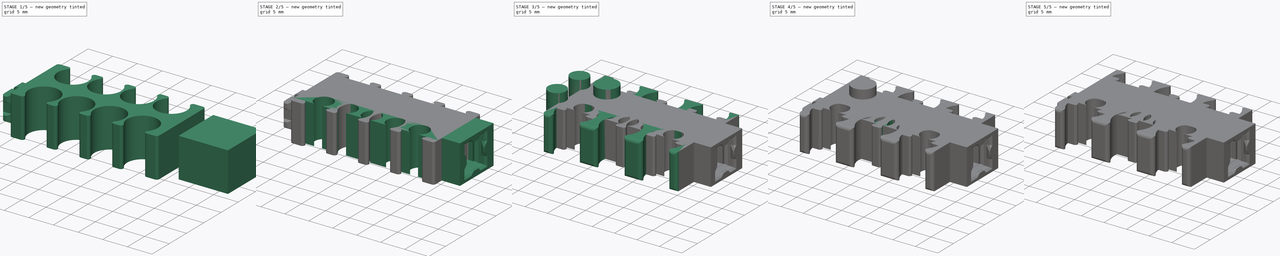
[diagram: build sequence overview — one tinted view per stage of 5, left to right]
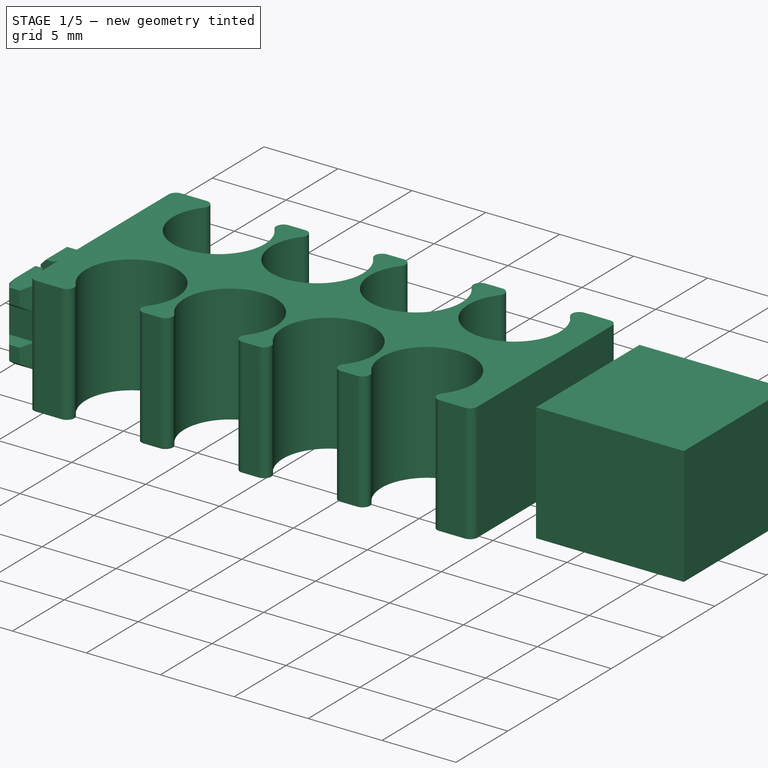
[diagram: stage 1 of 5 — iso view after this stage's code; geometry added in this stage tinted green]
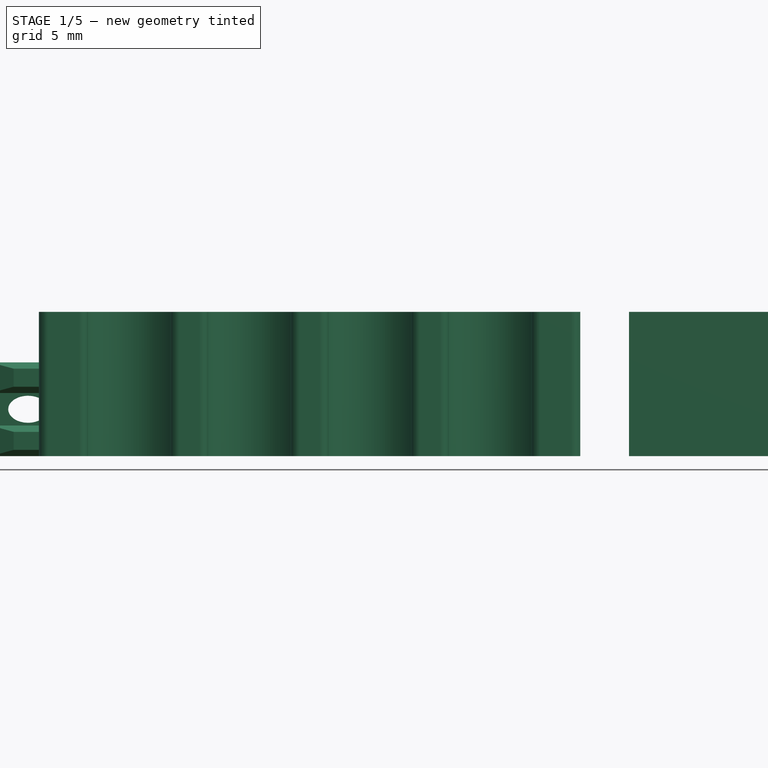
[diagram: stage 1 of 5 — front view after this stage's code; geometry added in this stage tinted green]
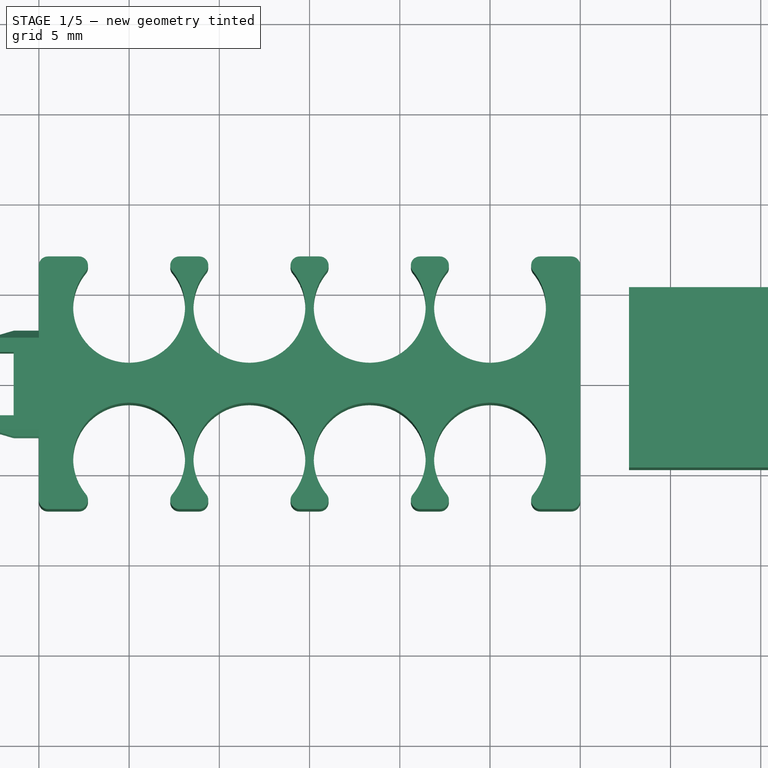
[diagram: stage 1 of 5 — top view after this stage's code; geometry added in this stage tinted green]
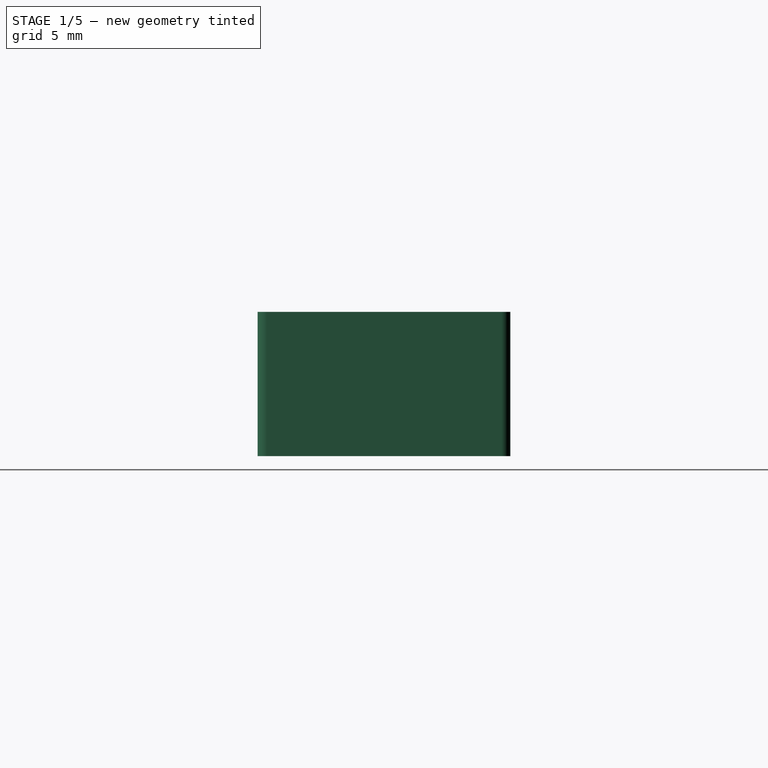
[diagram: stage 1 of 5 — right view after this stage's code; geometry added in this stage tinted green]
FCSTD DOCUMENT  (FreeCAD 0.20R29177 (Git))
Label: ring-clip-cable-organizer-wire-organizer-connectable
License: All rights reserved
LicenseURL: http://en.wikipedia.org/wiki/All_rights_reserved
objects: Part::Cut×17, Part::Cylinder×13, Sketcher::SketchObject×8, Part::Feature×8, Part::Refine×8, Part::Box×8, PartDesign::Pad×4, PartDesign::Pocket×4, PartDesign::LinearPattern×4, Part::MultiCommon×4, PartDesign::Body×4, App::Part×4, PartDesign::Fillet×3, Spreadsheet::Sheet×1
note: 96 computed .brp shape members not serialized (recipe doc carries the construction recipe); baked Part::Feature solids carry a one-line shape summary decoded from their .brp

FEATURE [App::Part] Part002  label="Part-S"
  Group = -> [Body002,_08_ShortBlok001_solid004,_08_ShortBlok001_solid005,Box004,Common002,Cylinder008,Cylinder009,_02h_Connector001001_solid004,_02h_Connector001001_solid005,Box005,Cylinder010,Cut011,Cut009,Cut010,Cut012]
  Origin = -> Origin005
FEATURE [Part::Box] Box006  label="Cube006"
  AttacherType = Attacher::AttachEngine3D
  Height = 8
  Length = 10
  Placement = pos=(17.7,-4.7,0) rot=(0,0,1;0rad)
  Width = 10
FEATURE [Part::Cylinder] Cylinder011
  Angle = 360
  AttacherType = Attacher::AttachEngine3D
  FirstAngle = 0
  Height = 10
  Placement = pos=(-16.4,-3.5,0) rot=(0,0,1;0rad)
  Radius = 2
  SecondAngle = 0
FEATURE [Part::Cylinder] Cylinder012
  Angle = 360
  AttacherType = Attacher::AttachEngine3D
  FirstAngle = 0
  Height = 10
  Placement = pos=(-16.3,3.5,0) rot=(0,0,1;0rad)
  Radius = 2
  SecondAngle = 0
FEATURE [Part::Cylinder] Cylinder013
  Angle = 360
  AttacherType = Attacher::AttachEngine3D
  FirstAngle = 0
  Height = 10
  Placement = pos=(-10.1,3.4,0) rot=(0,0,1;0rad)
  Radius = 2.5
  SecondAngle = 0
FEATURE [Sketcher::SketchObject] Sketch006
  FullyConstrained = true
  MapMode = 5
  Support = -> [XY_Plane006]
  expr: Constraints[10] = <<Spreadsheet_connectors>>.connector_length_S
  expr: Constraints[11] = <<Spreadsheet_connectors>>.connector_width_L
  sketch-geometry (5):
    g0: LineSegment StartX=-15 StartY=-7 StartZ=0 EndX=-15 EndY=7 EndZ=0
    g1: LineSegment StartX=-15 StartY=7 StartZ=0 EndX=15 EndY=7 EndZ=0
    g2: LineSegment StartX=15 StartY=7 StartZ=0 EndX=15 EndY=-7 EndZ=0
    g3: LineSegment StartX=15 StartY=-7 StartZ=0 EndX=-15 EndY=-7 EndZ=0
    g4: GeomPoint X=0 Y=0 Z=0
  constraints (12):
    c: Coincident(g0,g1)
    c: Coincident(g1,g2)
    c: Coincident(g2,g3)
    c: Coincident(g3,g0)
    c: Horizontal(g1)
    c: Horizontal(g3)
    c: Vertical(g0)
    c: Vertical(g2)
    c: Symmetric(g1,g0,g4)
    c: Coincident(g4,g-1)
    c: DistanceX(g1,g1) = 30
    c: DistanceY(g2,g2) = 14
FEATURE [PartDesign::Pad] Pad003
  Direction = (0,0,1)
  Length = 8
  Length2 = 10
  Profile = -> Sketch006
  ReferenceAxis = -> Sketch006 [N_Axis]
  Type = 0
  expr: Length = <<Spreadsheet_connectors>>.connector_height
FEATURE [Sketcher::SketchObject] Sketch007
  FullyConstrained = true
  MapMode = 5
  Support = -> [XY_Plane006]
  expr: Constraints[0] = <<Spreadsheet_connectors>>.wire_hole_L
  expr: Constraints[1] = 10mm
  expr: Constraints[2] = <<Spreadsheet_connectors>>.connector_width_L / 2 - <<Spreadsheet_connectors>>.wire_hole_L * 0.45
  expr: Constraints[4] = 10mm
  expr: Constraints[5] = <<Spreadsheet_connectors>>.connector_width_L / 2 - <<Spreadsheet_connectors>>.wire_hole_L * 0.45
  sketch-geometry (2):
    g0: Circle CenterX=-10 CenterY=4.21 CenterZ=0 NormalX=0 NormalY=0 NormalZ=1 AngleXU=0 Radius=3.1
    g1: Circle CenterX=-10 CenterY=-4.21 CenterZ=0 NormalX=0 NormalY=0 NormalZ=1 AngleXU=0 Radius=3.1
  constraints (6):
    c: Diameter(g0) = 6.2
    c: Distance(g0,g-2) = 10
    c: Distance(g0,g-1) = 4.21
    c: Equal(g0,g1) = 3.8
    c: Distance(g1,g-2) = 10
    c: Distance(g1,g-1) = 4.21
FEATURE [PartDesign::Pocket] Pocket003
  BaseFeature = -> Pad003
  Direction = (0,0,-1)
  Length = 5
  Length2 = 5
  Midplane = true
  Profile = -> Sketch007
  ReferenceAxis = -> Sketch007 [N_Axis]
  Type = 1
FEATURE [PartDesign::LinearPattern] LinearPattern003
  BaseFeature = -> Pocket003
  Direction = -> Sketch007 [H_Axis]
  Length = 20
  Occurrences = 4
  Originals = -> [Pocket003]
  expr: Length = 20mm
  expr: Occurrences = 4
FEATURE [Part::Feature] _02h_Connector001001_solid006  label="_02h_Connector001001 (Solid)006"
  shape: bbox 7.7 x 6.08 x 5.2 mm, 692 faces (baked)
FEATURE [Part::Refine] _02h_Connector001001_solid007  label="_02h_Connector001001 (Solid)007"
  Placement = pos=(1,0,0) rot=(0,0,1;0rad)
  Source = -> _02h_Connector001001_solid006
FEATURE [Part::Cut] Cut013
  Base = -> _02h_Connector001001_solid007
  Tool = -> Cylinder012
FEATURE [Part::Cut] Cut014
  Base = -> Cut013
  Placement = pos=(5.8,0,0) rot=(0,0,1;0rad)
  Tool = -> Cylinder011
FEATURE [Part::Cut] Cut016
  Base = -> Cut014
  Placement = pos=(-1.4,0,0) rot=(0,0,1;0rad)
  Tool = -> Cylinder013
FEATURE [PartDesign::Fillet] PartDesign__Fillet003
  Base = -> LinearPattern003 [Edge1,Edge2,Edge7,Edge9,Edge61,Edge62,Edge63,Edge64,Edge65,Edge66,Edge67,Edge68,Edge69,Edge70,Edge71,Edge72,Edge73,Edge74,Edge75,Edge76,Edge77,Edge78,Edge79,Edge80,Edge81,Edge82,Edge83,Edge84]
  BaseFeature = -> LinearPattern003
  Radius = 0.5
  SupportTransform = false
  UseAllEdges = false
FEATURE [PartDesign::Body] Body003
  Group = -> [Sketch006,Pad003,Sketch007,Pocket003,LinearPattern003,PartDesign__Fillet003]
  Origin = -> Origin006
  Tip = -> PartDesign__Fillet003
FEATURE [App::Part] Part003  label="Part-L"
  Group = -> [Body003,_08_ShortBlok001_solid006,_08_ShortBlok001_solid007,Box006,Common003,Cylinder011,Cylinder012,_02h_Connector001001_solid006,_02h_Connector001001_solid007,Box007,Cylinder013,Cut015,Cut013,Cut014,Cut016]
  Origin = -> Origin007
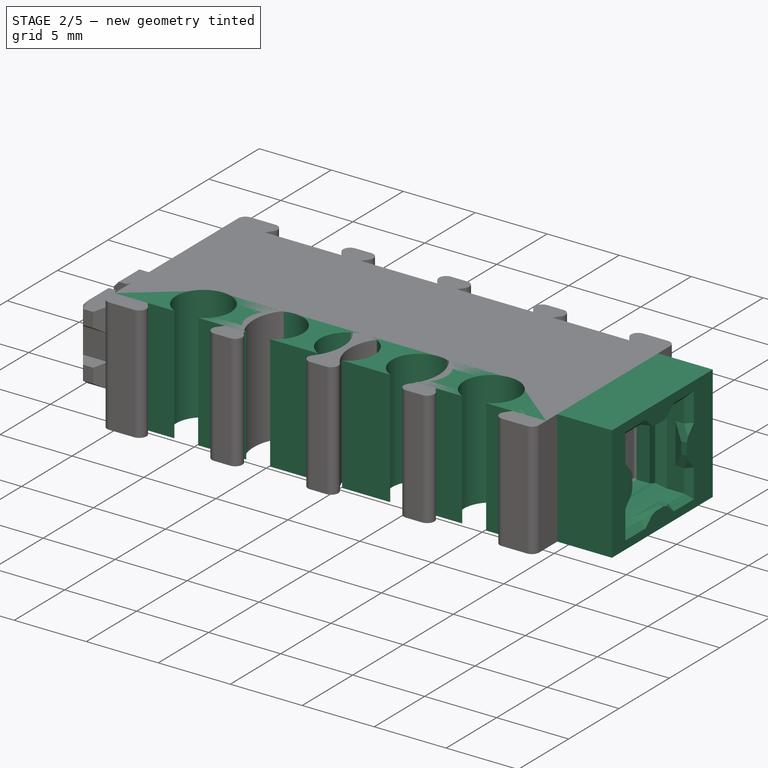
[diagram: stage 2 of 5 — iso view after this stage's code; geometry added in this stage tinted green]
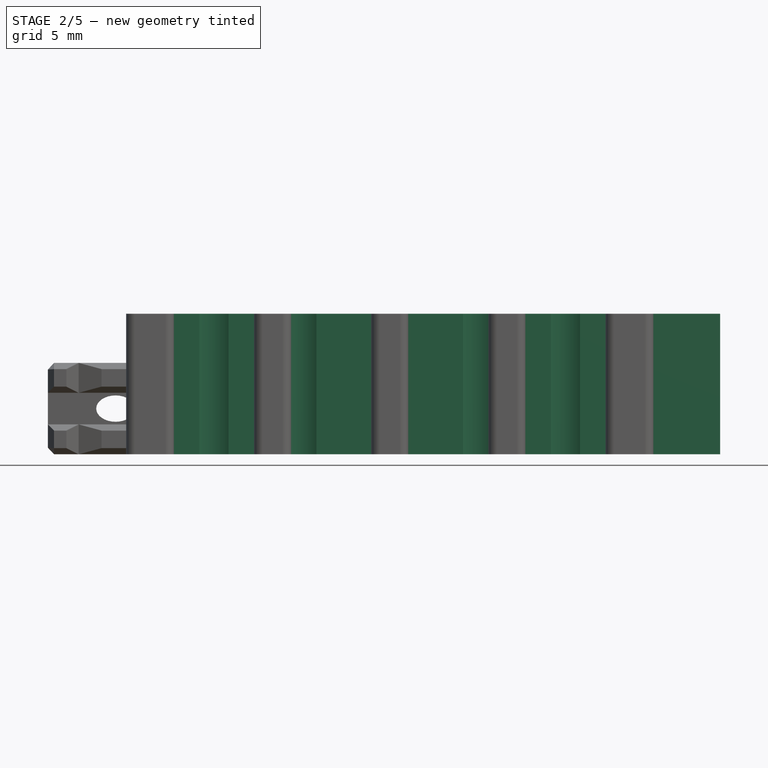
[diagram: stage 2 of 5 — front view after this stage's code; geometry added in this stage tinted green]
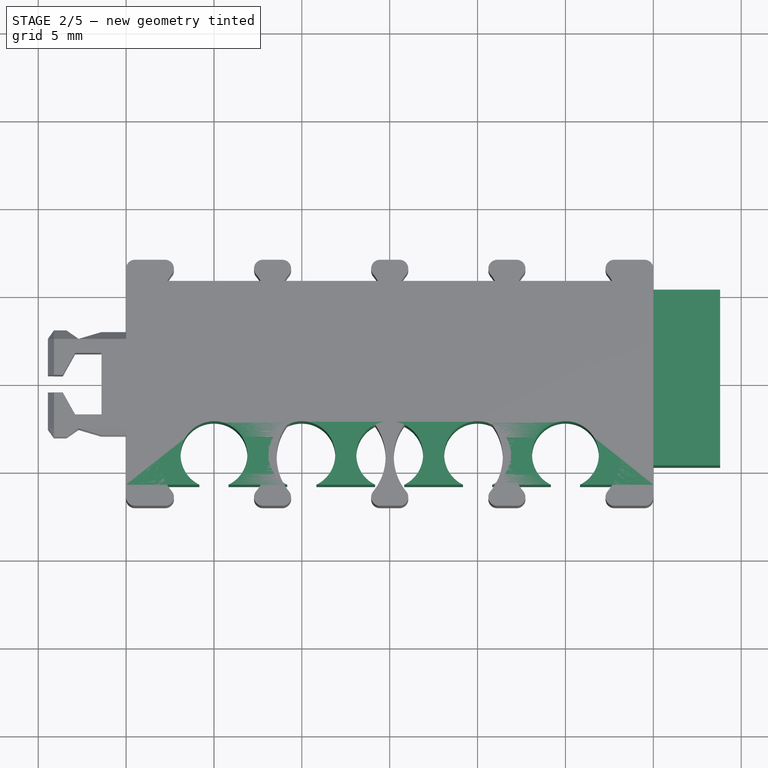
[diagram: stage 2 of 5 — top view after this stage's code; geometry added in this stage tinted green]
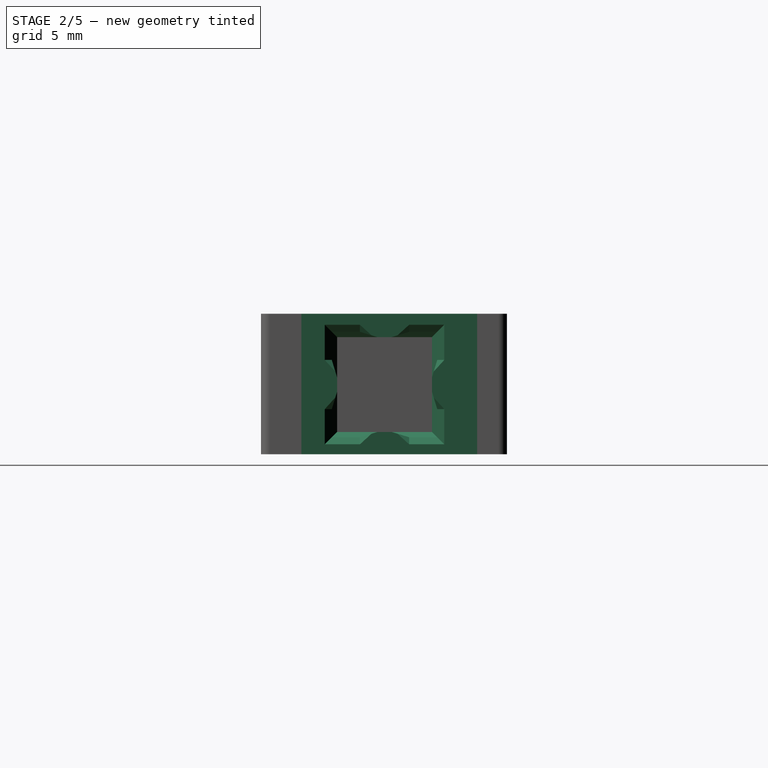
[diagram: stage 2 of 5 — right view after this stage's code; geometry added in this stage tinted green]
FEATURE [Part::Cylinder] Cylinder008
  Angle = 360
  AttacherType = Attacher::AttachEngine3D
  FirstAngle = 0
  Height = 10
  Placement = pos=(-16.4,-3.5,0) rot=(0,0,1;0rad)
  Radius = 2
  SecondAngle = 0
FEATURE [Part::Cylinder] Cylinder009
  Angle = 360
  AttacherType = Attacher::AttachEngine3D
  FirstAngle = 0
  Height = 10
  Placement = pos=(-16.3,3.5,0) rot=(0,0,1;0rad)
  Radius = 2
  SecondAngle = 0
FEATURE [Part::Cylinder] Cylinder010
  Angle = 360
  AttacherType = Attacher::AttachEngine3D
  FirstAngle = 0
  Height = 10
  Placement = pos=(-10.1,3.4,0) rot=(0,0,1;0rad)
  Radius = 2.5
  SecondAngle = 0
FEATURE [Sketcher::SketchObject] Sketch004
  FullyConstrained = true
  MapMode = 5
  Support = -> [XY_Plane004]
  expr: Constraints[10] = <<Spreadsheet_connectors>>.connector_length_S
  expr: Constraints[11] = <<Spreadsheet_connectors>>.connector_width_S
  sketch-geometry (5):
    g0: LineSegment StartX=-15 StartY=-5.8 StartZ=0 EndX=-15 EndY=5.8 EndZ=0
    g1: LineSegment StartX=-15 StartY=5.8 StartZ=0 EndX=15 EndY=5.8 EndZ=0
    g2: LineSegment StartX=15 StartY=5.8 StartZ=0 EndX=15 EndY=-5.8 EndZ=0
    g3: LineSegment StartX=15 StartY=-5.8 StartZ=0 EndX=-15 EndY=-5.8 EndZ=0
    g4: GeomPoint X=0 Y=0 Z=0
  constraints (12):
    c: Coincident(g0,g1)
    c: Coincident(g1,g2)
    c: Coincident(g2,g3)
    c: Coincident(g3,g0)
    c: Horizontal(g1)
    c: Horizontal(g3)
    c: Vertical(g0)
    c: Vertical(g2)
    c: Symmetric(g1,g0,g4)
    c: Coincident(g4,g-1)
    c: DistanceX(g1,g1) = 30
    c: DistanceY(g2,g2) = 11.6
FEATURE [PartDesign::Pad] Pad002
  Direction = (0,0,1)
  Length = 8
  Length2 = 10
  Profile = -> Sketch004
  ReferenceAxis = -> Sketch004 [N_Axis]
  Type = 0
  expr: Length = <<Spreadsheet_connectors>>.connector_height
FEATURE [Sketcher::SketchObject] Sketch005
  FullyConstrained = false
  MapMode = 5
  Support = -> [XY_Plane004]
  expr: Constraints[0] = 10mm
  expr: Constraints[1] = <<Spreadsheet_connectors>>.connector_width_S / 2 - <<Spreadsheet_connectors>>.wire_hole_S * 0.45
  sketch-geometry (1):
    g0: Circle CenterX=-10 CenterY=-4.09 CenterZ=0 NormalX=0 NormalY=0 NormalZ=1 AngleXU=0 Radius=1.9
  constraints (2):
    c: Distance(g0,g-2) = 10
    c: Distance(g0,g-1) = 4.09
FEATURE [PartDesign::Pocket] Pocket002
  BaseFeature = -> Pad002
  Direction = (0,0,-1)
  Length = 5
  Length2 = 5
  Midplane = true
  Profile = -> Sketch005
  ReferenceAxis = -> Sketch005 [N_Axis]
  Type = 1
FEATURE [PartDesign::LinearPattern] LinearPattern002
  BaseFeature = -> Pocket002
  Direction = -> Sketch005 [H_Axis]
  Length = 20
  Occurrences = 5
  Originals = -> [Pocket002]
  expr: Length = 20mm
  expr: Occurrences = 5
FEATURE [PartDesign::Body] Body002
  Group = -> [Sketch004,Pad002,Sketch005,Pocket002,LinearPattern002]
  Origin = -> Origin004
  Tip = -> LinearPattern002
FEATURE [Part::Feature] _02h_Connector001001_solid004  label="_02h_Connector001001 (Solid)004"
  shape: bbox 7.7 x 6.08 x 5.2 mm, 692 faces (baked)
FEATURE [Part::Refine] _02h_Connector001001_solid005  label="_02h_Connector001001 (Solid)005"
  Placement = pos=(1,0,0) rot=(0,0,1;0rad)
  Source = -> _02h_Connector001001_solid004
FEATURE [Part::Cut] Cut009
  Base = -> _02h_Connector001001_solid005
  Tool = -> Cylinder009
FEATURE [Part::Cut] Cut010
  Base = -> Cut009
  Placement = pos=(5.8,0,0) rot=(0,0,1;0rad)
  Tool = -> Cylinder008
FEATURE [Part::Cut] Cut012
  Base = -> Cut010
  Placement = pos=(-1.4,0,0) rot=(0,0,1;0rad)
  Tool = -> Cylinder010
FEATURE [Part::Box] Box007  label="Cube007"
  AttacherType = Attacher::AttachEngine3D
  Height = 10
  Length = 4
  Placement = pos=(18,-4.7,0) rot=(0,0,1;0rad)
  Width = 10
FEATURE [Part::Feature] _08_ShortBlok001_solid006  label="_08_ShortBlok001 (Solid)006"
  shape: bbox 8 x 16 x 16 mm, 464 faces (baked)
FEATURE [Part::Refine] _08_ShortBlok001_solid007  label="_08_ShortBlok001 (Solid)007"
  Placement = pos=(0,3,1) rot=(1,0,0;0.785398rad)
  Source = -> _08_ShortBlok001_solid006
FEATURE [Part::MultiCommon] Common003
  Placement = pos=(0.3,0,0) rot=(0,0,1;0rad)
  Shapes = -> [_08_ShortBlok001_solid007,Box006]
FEATURE [Part::Cut] Cut015
  Base = -> Common003
  Placement = pos=(-7,0,0) rot=(0,0,1;0rad)
  Tool = -> Box007
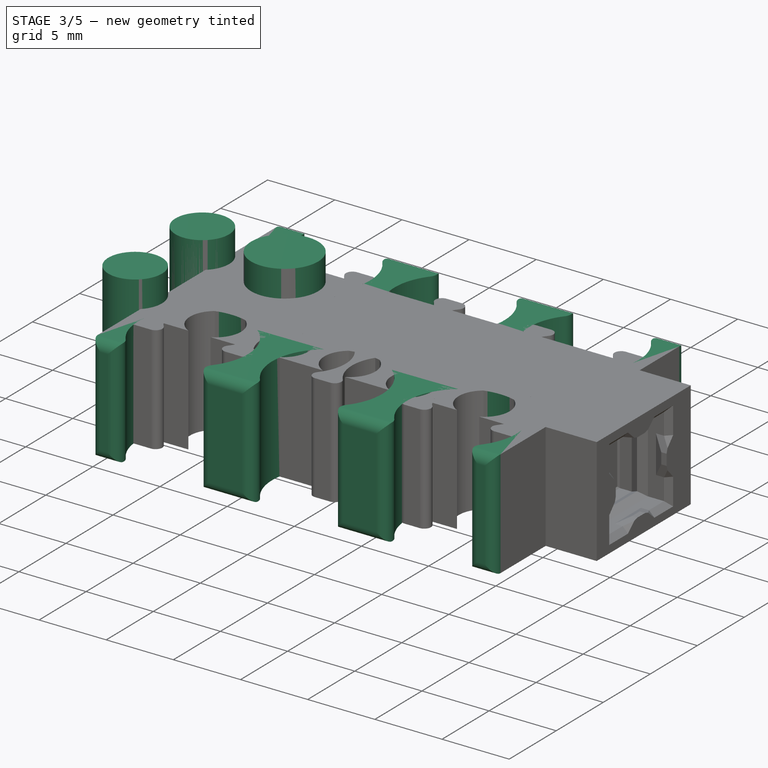
[diagram: stage 3 of 5 — iso view after this stage's code; geometry added in this stage tinted green]
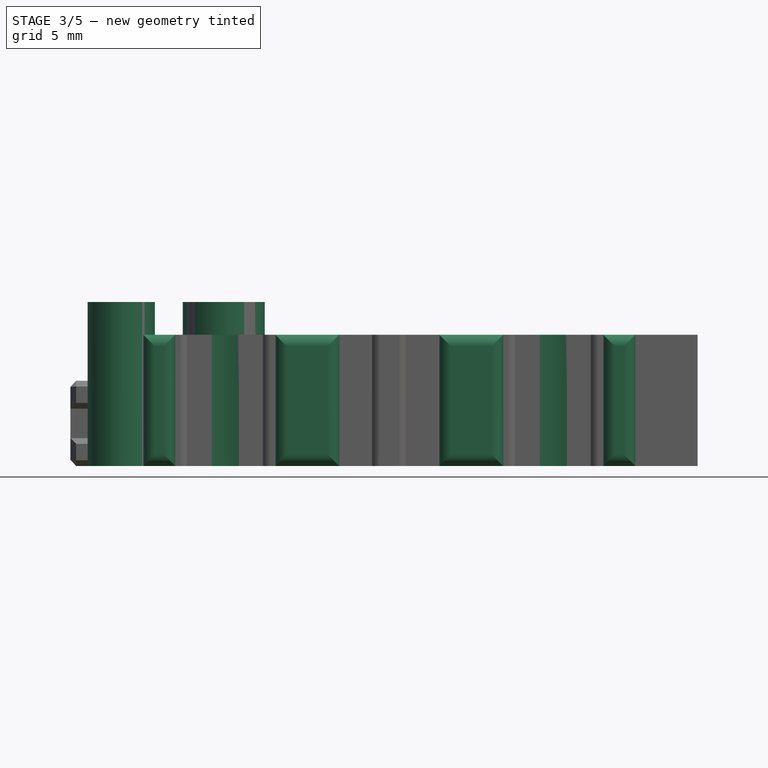
[diagram: stage 3 of 5 — front view after this stage's code; geometry added in this stage tinted green]
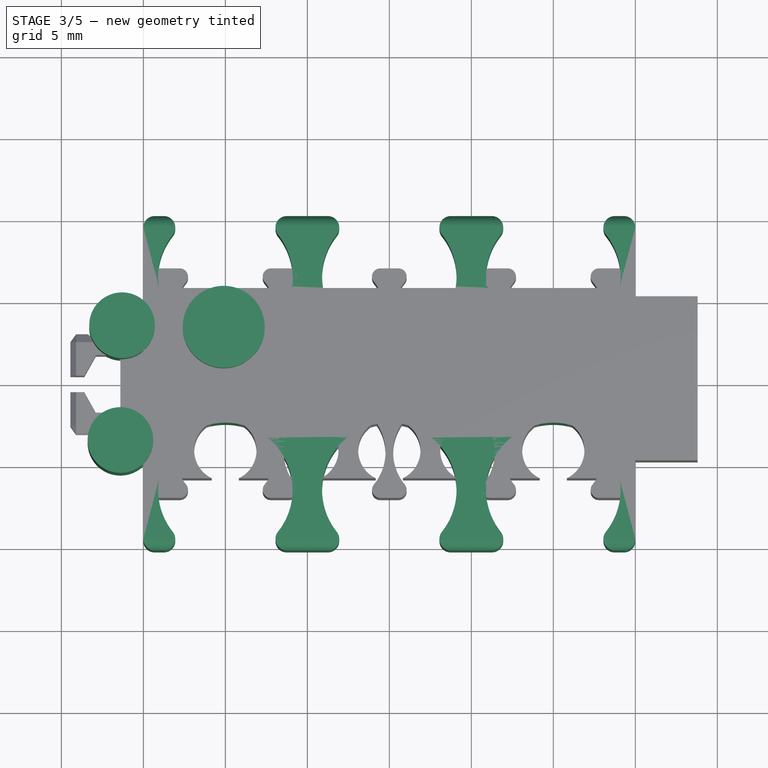
[diagram: stage 3 of 5 — top view after this stage's code; geometry added in this stage tinted green]
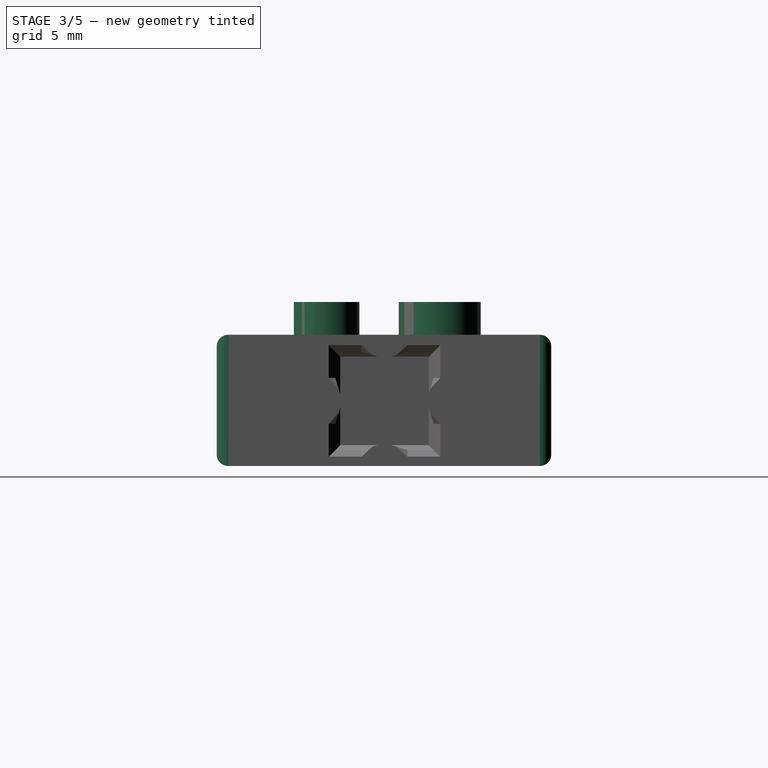
[diagram: stage 3 of 5 — right view after this stage's code; geometry added in this stage tinted green]
FEATURE [Part::Cylinder] Cylinder004
  Angle = 360
  AttacherType = Attacher::AttachEngine3D
  FirstAngle = 0
  Height = 10
  Placement = pos=(-16.4,-3.5,0) rot=(0,0,1;0rad)
  Radius = 2
  SecondAngle = 0
FEATURE [Part::Cylinder] Cylinder005
  Angle = 360
  AttacherType = Attacher::AttachEngine3D
  FirstAngle = 0
  Height = 10
  Placement = pos=(-16.3,3.5,0) rot=(0,0,1;0rad)
  Radius = 2
  SecondAngle = 0
FEATURE [Part::Cylinder] Cylinder007
  Angle = 360
  AttacherType = Attacher::AttachEngine3D
  FirstAngle = 0
  Height = 10
  Placement = pos=(-10.1,3.4,0) rot=(0,0,1;0rad)
  Radius = 2.5
  SecondAngle = 0
FEATURE [Sketcher::SketchObject] Sketch002
  FullyConstrained = true
  MapMode = 5
  Support = -> [XY_Plane002]
  expr: Constraints[10] = <<Spreadsheet_connectors>>.connector_length_S
  expr: Constraints[11] = <<Spreadsheet_connectors>>.connector_width_XL
  sketch-geometry (5):
    g0: LineSegment StartX=-15 StartY=-10.2 StartZ=0 EndX=-15 EndY=10.2 EndZ=0
    g1: LineSegment StartX=-15 StartY=10.2 StartZ=0 EndX=15 EndY=10.2 EndZ=0
    g2: LineSegment StartX=15 StartY=10.2 StartZ=0 EndX=15 EndY=-10.2 EndZ=0
    g3: LineSegment StartX=15 StartY=-10.2 StartZ=0 EndX=-15 EndY=-10.2 EndZ=0
    g4: GeomPoint X=0 Y=0 Z=0
  constraints (12):
    c: Coincident(g0,g1)
    c: Coincident(g1,g2)
    c: Coincident(g2,g3)
    c: Coincident(g3,g0)
    c: Horizontal(g1)
    c: Horizontal(g3)
    c: Vertical(g0)
    c: Vertical(g2)
    c: Symmetric(g1,g0,g4)
    c: Coincident(g4,g-1)
    c: DistanceX(g1,g1) = 30
    c: DistanceY(g2,g2) = 20.4
FEATURE [PartDesign::Pad] Pad001
  Direction = (0,0,1)
  Length = 8
  Length2 = 10
  Profile = -> Sketch002
  ReferenceAxis = -> Sketch002 [N_Axis]
  Type = 0
  expr: Length = <<Spreadsheet_connectors>>.connector_height
FEATURE [Sketcher::SketchObject] Sketch003
  FullyConstrained = true
  MapMode = 5
  Support = -> [XY_Plane002]
  expr: Constraints[0] = <<Spreadsheet_connectors>>.wire_hole_XL
  expr: Constraints[1] = 10mm
  expr: Constraints[2] = <<Spreadsheet_connectors>>.connector_width_XL / 2 - <<Spreadsheet_connectors>>.wire_hole_XL * 0.45
  expr: Constraints[4] = 10mm
  expr: Constraints[5] = <<Spreadsheet_connectors>>.connector_width_XL / 2 - <<Spreadsheet_connectors>>.wire_hole_XL * 0.45
  sketch-geometry (2):
    g0: Circle CenterX=-10 CenterY=6.51 CenterZ=0 NormalX=0 NormalY=0 NormalZ=1 AngleXU=0 Radius=4.1
    g1: Circle CenterX=-10 CenterY=-6.51 CenterZ=0 NormalX=0 NormalY=0 NormalZ=1 AngleXU=0 Radius=4.1
  constraints (6):
    c: Diameter(g0) = 8.2
    c: Distance(g0,g-2) = 10
    c: Distance(g0,g-1) = 6.51
    c: Equal(g0,g1) = 3.8
    c: Distance(g1,g-2) = 10
    c: Distance(g1,g-1) = 6.51
FEATURE [PartDesign::Pocket] Pocket001
  BaseFeature = -> Pad001
  Direction = (0,0,-1)
  Length = 5
  Length2 = 5
  Midplane = true
  Profile = -> Sketch003
  ReferenceAxis = -> Sketch003 [N_Axis]
  Type = 1
FEATURE [PartDesign::LinearPattern] LinearPattern001
  BaseFeature = -> Pocket001
  Direction = -> Sketch003 [H_Axis]
  Length = 20
  Occurrences = 3
  Originals = -> [Pocket001]
  expr: Length = 20mm
  expr: Occurrences = 3
FEATURE [PartDesign::Fillet] PartDesign__Fillet001
  Base = -> LinearPattern001 [edge52,edge53,edge54,edge55,edge56,edge57,edge58,edge59,edge60,edge61,edge62,edge63,edge64,edge65,edge66,Face15,Face12,Face9,Face3,Face2,Face23,Face20,Face17]
  BaseFeature = -> LinearPattern001
  Radius = 0.7
  SupportTransform = false
  UseAllEdges = false
FEATURE [PartDesign::Body] Body001
  Group = -> [Sketch002,Pad001,Sketch003,Pocket001,LinearPattern001,PartDesign__Fillet001]
  Origin = -> Origin002
  Tip = -> PartDesign__Fillet001
FEATURE [App::Part] Part001  label="Part-XL"
  Group = -> [Body001,_08_ShortBlok001_solid002,_08_ShortBlok001_solid003,Box002,Common001,Cylinder004,Cylinder005,_02h_Connector001001_solid002,_02h_Connector001001_solid003,Box003,Cylinder007,Cut007,Cut005,Cut006,Cut008]
  Origin = -> Origin003
FEATURE [Part::Box] Box004  label="Cube004"
  AttacherType = Attacher::AttachEngine3D
  Height = 8
  Length = 10
  Placement = pos=(17.7,-4.7,0) rot=(0,0,1;0rad)
  Width = 10
FEATURE [Part::Box] Box005  label="Cube005"
  AttacherType = Attacher::AttachEngine3D
  Height = 10
  Length = 4
  Placement = pos=(18,-4.7,0) rot=(0,0,1;0rad)
  Width = 10
FEATURE [Part::Feature] _08_ShortBlok001_solid004  label="_08_ShortBlok001 (Solid)004"
  shape: bbox 8 x 16 x 16 mm, 464 faces (baked)
FEATURE [Part::Refine] _08_ShortBlok001_solid005  label="_08_ShortBlok001 (Solid)005"
  Placement = pos=(0,3,1) rot=(1,0,0;0.785398rad)
  Source = -> _08_ShortBlok001_solid004
FEATURE [Part::MultiCommon] Common002
  Placement = pos=(0.3,0,0) rot=(0,0,1;0rad)
  Shapes = -> [_08_ShortBlok001_solid005,Box004]
FEATURE [Part::Cut] Cut011
  Base = -> Common002
  Placement = pos=(-7,0,0) rot=(0,0,1;0rad)
  Tool = -> Box005
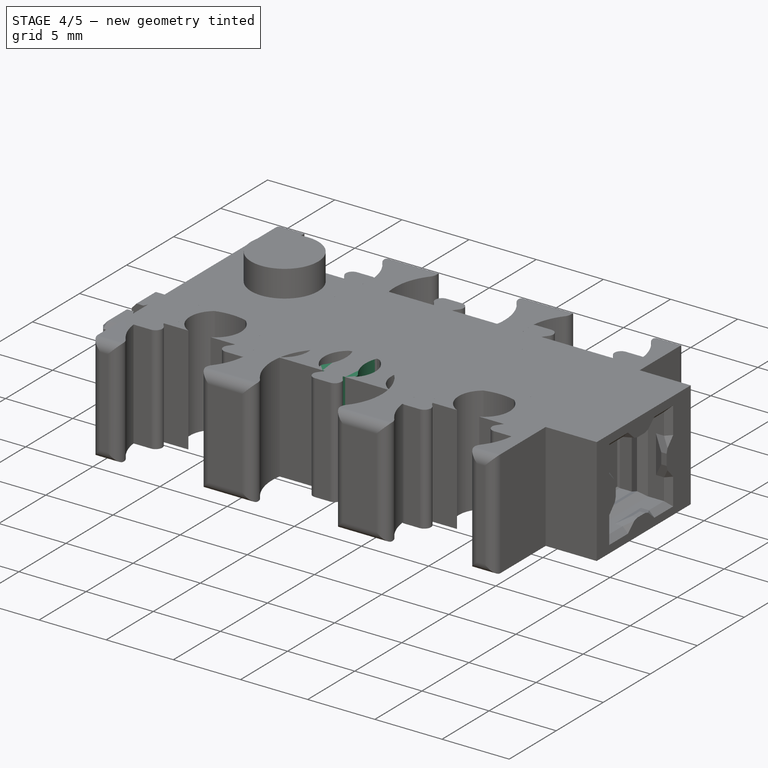
[diagram: stage 4 of 5 — iso view after this stage's code; geometry added in this stage tinted green]
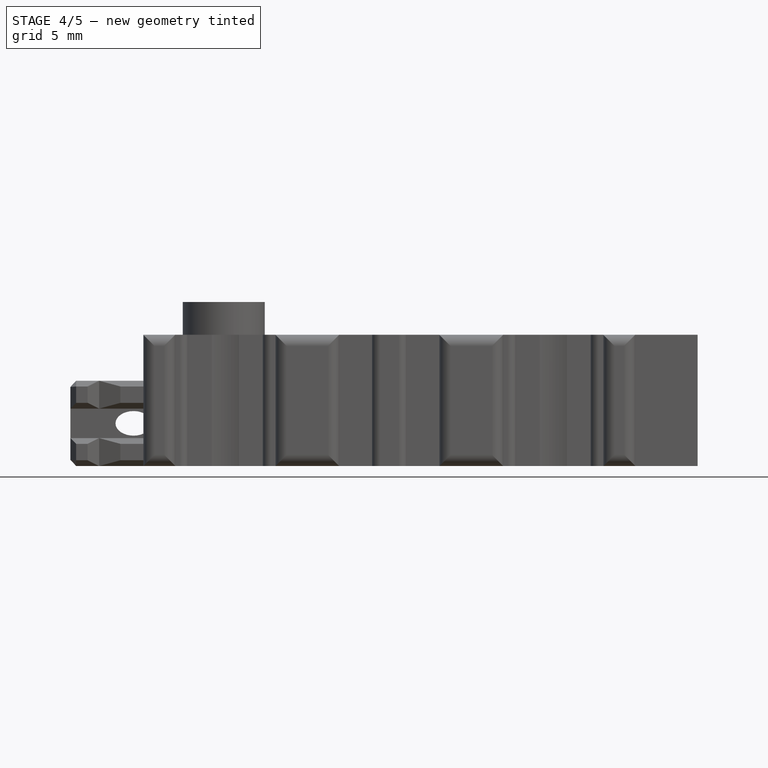
[diagram: stage 4 of 5 — front view after this stage's code; geometry added in this stage tinted green]
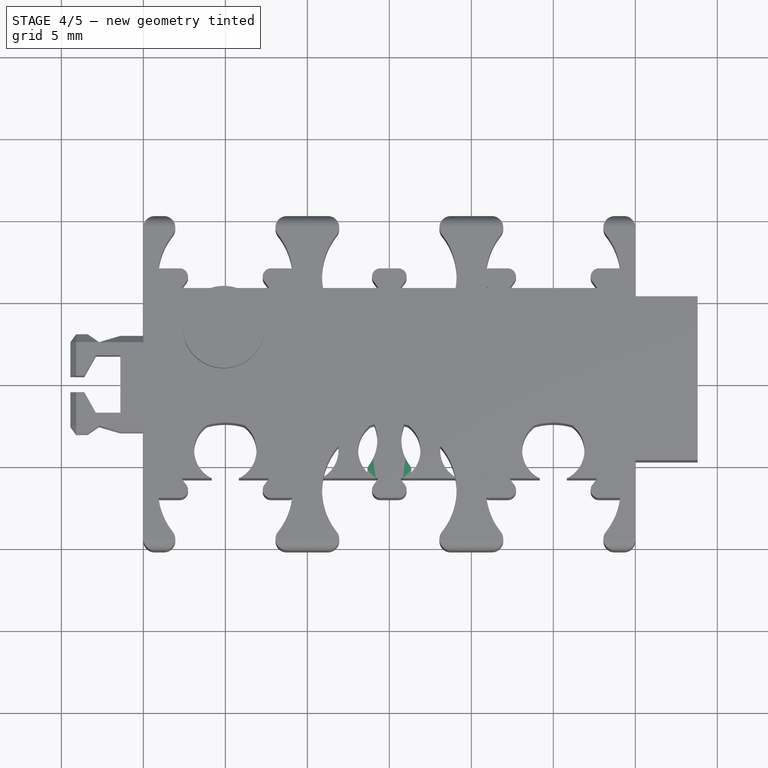
[diagram: stage 4 of 5 — top view after this stage's code; geometry added in this stage tinted green]
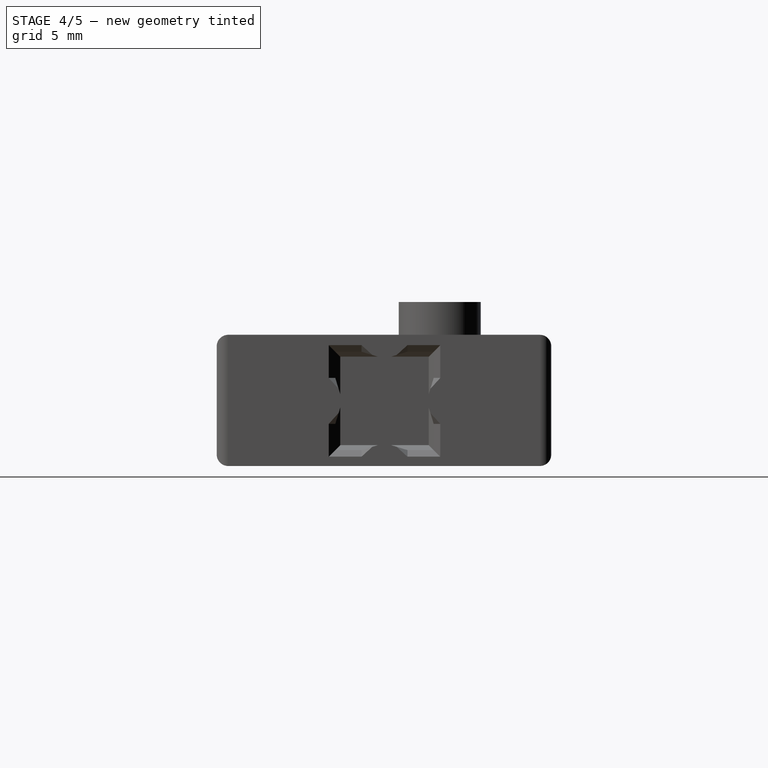
[diagram: stage 4 of 5 — right view after this stage's code; geometry added in this stage tinted green]
FEATURE [Spreadsheet::Sheet] Spreadsheet004  label="Spreadsheet_connectors"
  cells = A1=Component; B1=Dim; A2=wire_hole_XL; B2(wire_hole_XL)==8.199999999999999mm; A3=wire_hole_L; B3(wire_hole_L)==6.2mm; A4=wire_hole_M; B4(wire_hole_M)==5.2mm; A5=wire_hole_S; B5(wire_hole_S)==3.8mm; A7=organizer_padding; B7(organizer_padding)==3.5mm; A8=ring_thickness; B8(ring_thickness)==4mm; A9=ring_outer_diameter; B9(ring_outer_diameter)==82.5mm; A10=ring_slot_diameter; B10(ring_slot_diameter)==4.8mm; A12=organizer_outer_diameter; B12(organizer_outer_diameter)==ring_outer_diameter + wire_hole_XL * 4 + 2 * organizer_padding; A13=organizer_inner_diameter; B13(organizer_inner_diameter)==ring_outer_diameter - ring_thickness * 2; A14=organizer_thickness; B14(organizer_thickness)==ring_slot_diameter + 3mm; A16=wire_hole_position_ratio; B16(wire_hole_position_ratio)=0.98; A17=organizer_outer_alignment_ring_XL; B17(organizer_outer_alignment_ring_XL)==organizer_outer_diameter - wire_hole_XL * wire_hole_position_ratio; A18=organizer_outer_alignment_ring_L; B18(organizer_outer_alignment_ring_L)==organizer_outer_diameter - wire_hole_L * wire_hole_position_ratio; A19=organizer_outer_alignment_ring_M; B19(organizer_outer_alignment_ring_M)==organizer_outer_diameter - wire_hole_M * wire_hole_position_ratio; A20=organizer_outer_alignment_ring_S; B20(organizer_outer_alignment_ring_S)==organizer_outer_diameter - wire_hole_S * wire_hole_position_ratio; A21=ring_slot_alignment_ring; B21(ring_slot_alignment_ring)==organizer_inner_diameter + ring_slot_diameter * 0.7; A23=organizer_inner_alignment_ring_XL; B23(organizer_inner_alignment_ring_XL)==organizer_inner_diameter + ring_slot_diameter * 2 + wire_hole_XL * 0.75; A24=organizer_inner_alignment_ring_L; B24(organizer_inner_alignment_ring_L)==organizer_inner_diameter + ring_slot_diameter * 2 + wire_hole_L * 0.75; A25=organizer_inner_alignment_ring_M; B25(organizer_inner_alignment_ring_M)==organizer_inner_diameter + ring_slot_diameter * 2 + wire_hole_M * 0.75; A26=organizer_inner_alignment_ring_S; B26(organizer_inner_alignment_ring_S)==organizer_inner_diameter + ring_slot_diameter * 2 + wire_hole_S * 0.75; A28=connector_length_S; B28(connector_length_S)==30mm; D28=connector_height; E28(connector_height)==8mm; A29=connector_width_S; B29(connector_width_S)==2 * wire_hole_S + connector_width_pad; D29=connector_width_pad; E29(connector_width_pad)==4mm; A30=connector_length_M; B30==30mm; A31=connector_width_M; B31==2 * wire_hole_S + connector_width_pad; A32=connector_length_L; B32(connector_length_L)==30mm; A33=connector_width_L; B33(connector_width_L)==14mm; A34=connector_length_XL; B34(connector_length_XL)==30mm; A35=connector_width_XL; B35(connector_width_XL)==2 * wire_hole_XL + connector_width_pad
FEATURE [Sketcher::SketchObject] Sketch
  FullyConstrained = true
  MapMode = 5
  Support = -> [XY_Plane]
  expr: Constraints[10] = <<Spreadsheet_connectors>>.connector_length_S
  expr: Constraints[11] = <<Spreadsheet_connectors>>.connector_width_S
  sketch-geometry (5):
    g0: LineSegment StartX=-15 StartY=-5.8 StartZ=0 EndX=-15 EndY=5.8 EndZ=0
    g1: LineSegment StartX=-15 StartY=5.8 StartZ=0 EndX=15 EndY=5.8 EndZ=0
    g2: LineSegment StartX=15 StartY=5.8 StartZ=0 EndX=15 EndY=-5.8 EndZ=0
    g3: LineSegment StartX=15 StartY=-5.8 StartZ=0 EndX=-15 EndY=-5.8 EndZ=0
    g4: GeomPoint X=0 Y=0 Z=0
  constraints (12):
    c: Coincident(g0,g1)
    c: Coincident(g1,g2)
    c: Coincident(g2,g3)
    c: Coincident(g3,g0)
    c: Horizontal(g1)
    c: Horizontal(g3)
    c: Vertical(g0)
    c: Vertical(g2)
    c: Symmetric(g1,g0,g4)
    c: Coincident(g4,g-1)
    c: DistanceX(g1,g1) = 30
    c: DistanceY(g2,g2) = 11.6
FEATURE [PartDesign::Pad] Pad
  Direction = (0,0,1)
  Length = 8
  Length2 = 10
  Profile = -> Sketch
  ReferenceAxis = -> Sketch [N_Axis]
  Type = 0
  expr: Length = <<Spreadsheet_connectors>>.connector_height
FEATURE [Sketcher::SketchObject] Sketch001
  FullyConstrained = true
  MapMode = 5
  Support = -> [XY_Plane]
  expr: Constraints[0] = <<Spreadsheet_connectors>>.wire_hole_M
  expr: Constraints[1] = 10mm
  expr: Constraints[2] = <<Spreadsheet_connectors>>.connector_width_S / 2 - <<Spreadsheet_connectors>>.wire_hole_M * 0.45
  expr: Constraints[4] = 10mm
  expr: Constraints[5] = <<Spreadsheet_connectors>>.connector_width_S / 2 - <<Spreadsheet_connectors>>.wire_hole_M * 0.45
  sketch-geometry (2):
    g0: Circle CenterX=-10 CenterY=3.46 CenterZ=0 NormalX=0 NormalY=0 NormalZ=1 AngleXU=0 Radius=2.6
    g1: Circle CenterX=-10 CenterY=-3.46 CenterZ=0 NormalX=0 NormalY=0 NormalZ=1 AngleXU=0 Radius=2.6
  constraints (6):
    c: Diameter(g0) = 5.2
    c: Distance(g0,g-2) = 10
    c: Distance(g0,g-1) = 3.46
    c: Equal(g0,g1) = 3.8
    c: Distance(g1,g-2) = 10
    c: Distance(g1,g-1) = 3.46
FEATURE [PartDesign::Pocket] Pocket
  BaseFeature = -> Pad
  Direction = (0,0,-1)
  Length = 5
  Length2 = 5
  Midplane = true
  Profile = -> Sketch001
  ReferenceAxis = -> Sketch001 [N_Axis]
  Type = 1
FEATURE [PartDesign::LinearPattern] LinearPattern
  BaseFeature = -> Pocket
  Direction = -> Sketch001 [H_Axis]
  Length = 20
  Occurrences = 4
  Originals = -> [Pocket]
  expr: Length = 20mm
  expr: Occurrences = 4
FEATURE [Part::Cylinder] Cylinder003
  Angle = 360
  AttacherType = Attacher::AttachEngine3D
  FirstAngle = 0
  Height = 10
  Placement = pos=(-10.1,3.4,0) rot=(0,0,1;0rad)
  Radius = 2.5
  SecondAngle = 0
FEATURE [PartDesign::Fillet] PartDesign__Fillet
  Base = -> LinearPattern [Edge1,Edge2,Edge7,Edge9,Edge61,Edge62,Edge63,Edge64,Edge65,Edge66,Edge67,Edge68,Edge69,Edge70,Edge71,Edge72,Edge73,Edge74,Edge75,Edge76,Edge77,Edge78,Edge79,Edge80,Edge81,Edge82,Edge83,Edge84]
  BaseFeature = -> LinearPattern
  Radius = 0.5
  SupportTransform = false
  UseAllEdges = false
FEATURE [PartDesign::Body] Body
  Group = -> [Sketch,Pad,Sketch001,Pocket,LinearPattern,PartDesign__Fillet]
  Origin = -> Origin
  Tip = -> PartDesign__Fillet
FEATURE [App::Part] Part  label="Part-M"
  Group = -> [Body,_08_ShortBlok001_solid,_08_ShortBlok001_solid001,Box,Common,Cylinder,Cylinder001,_02h_Connector001001_solid,_02h_Connector001001_solid001,Box001,Cylinder002,Cylinder003,Cut002,Cut,Cut001,Cut003,Cut004]
  Origin = -> Origin001
FEATURE [Part::Box] Box002  label="Cube002"
  AttacherType = Attacher::AttachEngine3D
  Height = 8
  Length = 10
  Placement = pos=(17.7,-4.7,0) rot=(0,0,1;0rad)
  Width = 10
FEATURE [Part::Box] Box003  label="Cube003"
  AttacherType = Attacher::AttachEngine3D
  Height = 10
  Length = 4
  Placement = pos=(18,-4.7,0) rot=(0,0,1;0rad)
  Width = 10
FEATURE [Part::Feature] _02h_Connector001001_solid002  label="_02h_Connector001001 (Solid)002"
  shape: bbox 7.7 x 6.08 x 5.2 mm, 692 faces (baked)
FEATURE [Part::Refine] _02h_Connector001001_solid003  label="_02h_Connector001001 (Solid)003"
  Placement = pos=(1,0,0) rot=(0,0,1;0rad)
  Source = -> _02h_Connector001001_solid002
FEATURE [Part::Cut] Cut005
  Base = -> _02h_Connector001001_solid003
  Tool = -> Cylinder005
FEATURE [Part::Cut] Cut006
  Base = -> Cut005
  Placement = pos=(5.8,0,0) rot=(0,0,1;0rad)
  Tool = -> Cylinder004
FEATURE [Part::Cut] Cut008
  Base = -> Cut006
  Placement = pos=(-1.4,0,0) rot=(0,0,1;0rad)
  Tool = -> Cylinder007
FEATURE [Part::Feature] _08_ShortBlok001_solid002  label="_08_ShortBlok001 (Solid)002"
  shape: bbox 8 x 16 x 16 mm, 464 faces (baked)
FEATURE [Part::Refine] _08_ShortBlok001_solid003  label="_08_ShortBlok001 (Solid)003"
  Placement = pos=(0,3,1) rot=(1,0,0;0.785398rad)
  Source = -> _08_ShortBlok001_solid002
FEATURE [Part::MultiCommon] Common001
  Placement = pos=(0.3,0,0) rot=(0,0,1;0rad)
  Shapes = -> [_08_ShortBlok001_solid003,Box002]
FEATURE [Part::Cut] Cut007
  Base = -> Common001
  Placement = pos=(-7,0,0) rot=(0,0,1;0rad)
  Tool = -> Box003
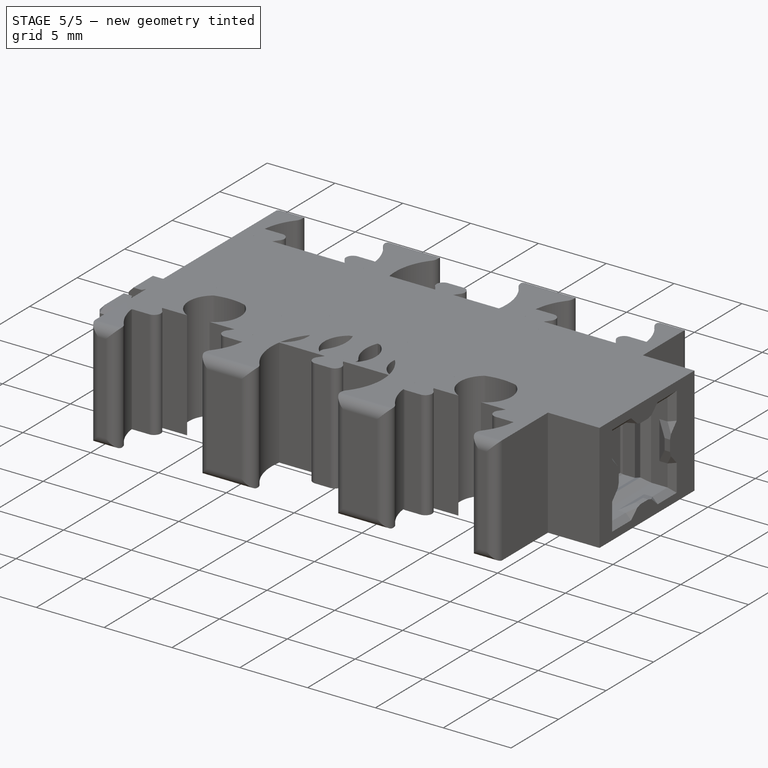
[diagram: stage 5 of 5 — iso view after this stage's code; geometry added in this stage tinted green]
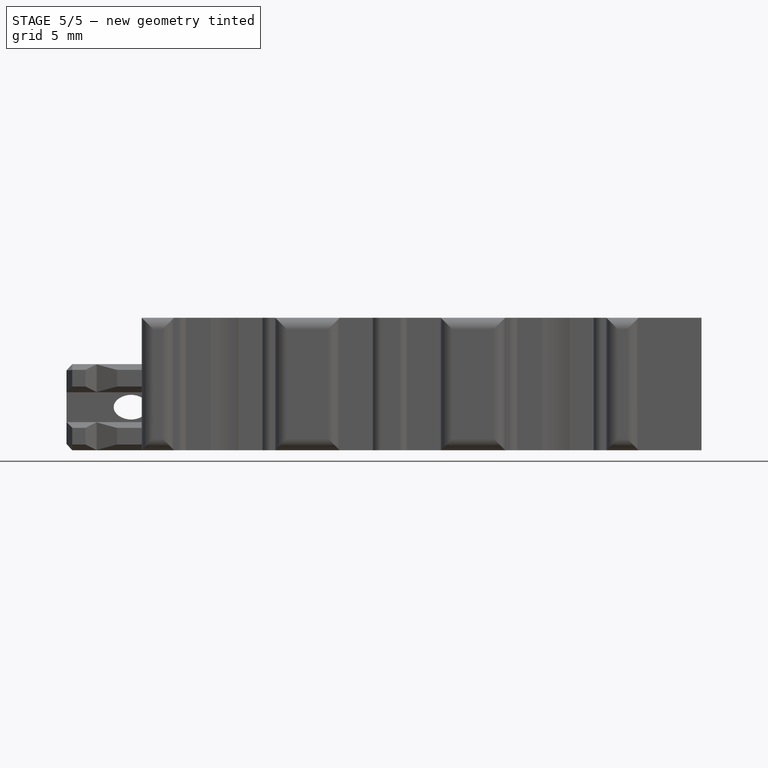
[diagram: stage 5 of 5 — front view after this stage's code; geometry added in this stage tinted green]
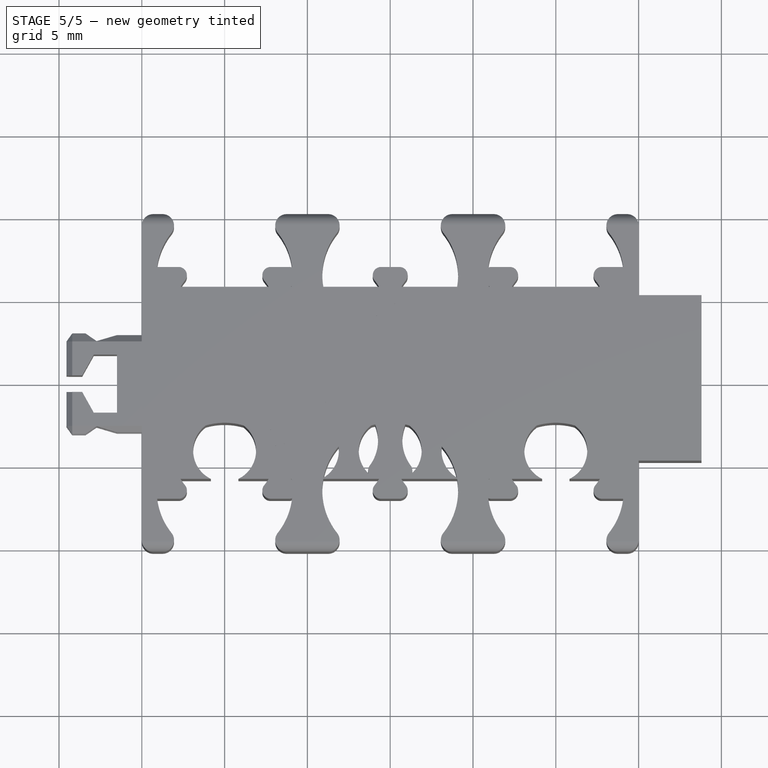
[diagram: stage 5 of 5 — top view after this stage's code; geometry added in this stage tinted green]
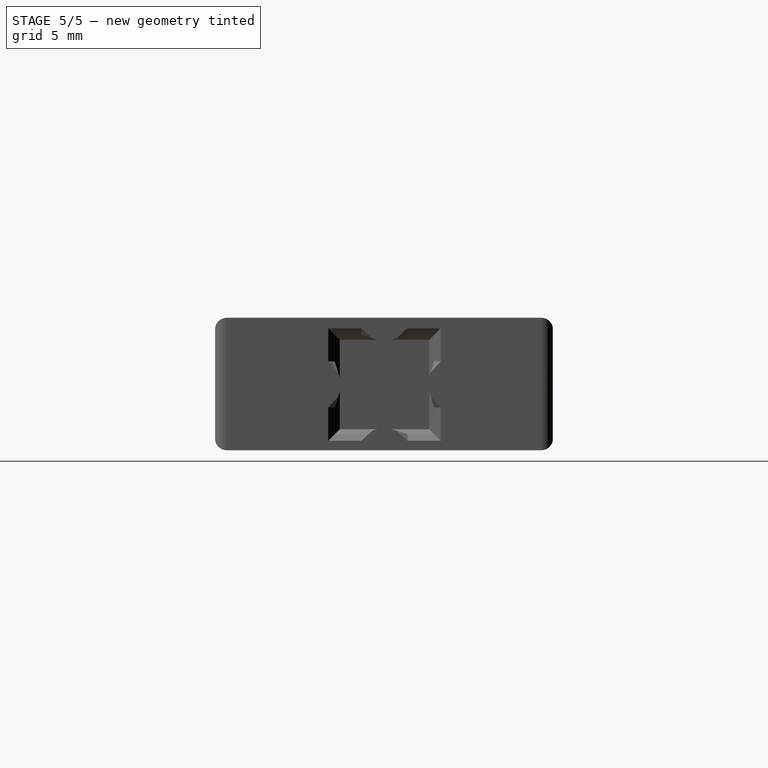
[diagram: stage 5 of 5 — right view after this stage's code; geometry added in this stage tinted green]
FEATURE [Part::Feature] _08_ShortBlok001_solid  label="_08_ShortBlok001 (Solid)"
  shape: bbox 8 x 16 x 16 mm, 464 faces (baked)
FEATURE [Part::Refine] _08_ShortBlok001_solid001  label="_08_ShortBlok001 (Solid)001"
  Placement = pos=(0,3,1) rot=(1,0,0;0.785398rad)
  Source = -> _08_ShortBlok001_solid
FEATURE [Part::Box] Box  label="Cube"
  AttacherType = Attacher::AttachEngine3D
  Height = 8
  Length = 10
  Placement = pos=(17.7,-4.7,0) rot=(0,0,1;0rad)
  Width = 10
FEATURE [Part::MultiCommon] Common
  Placement = pos=(0.3,0,0) rot=(0,0,1;0rad)
  Shapes = -> [_08_ShortBlok001_solid001,Box]
FEATURE [Part::Feature] _02h_Connector001001_solid  label="_02h_Connector001001 (Solid)"
  shape: bbox 7.7 x 6.08 x 5.2 mm, 692 faces (baked)
FEATURE [Part::Refine] _02h_Connector001001_solid001  label="_02h_Connector001001 (Solid)001"
  Placement = pos=(1,0,0) rot=(0,0,1;0rad)
  Source = -> _02h_Connector001001_solid
FEATURE [Part::Cylinder] Cylinder
  Angle = 360
  AttacherType = Attacher::AttachEngine3D
  FirstAngle = 0
  Height = 10
  Placement = pos=(-16.4,-3.5,0) rot=(0,0,1;0rad)
  Radius = 2
  SecondAngle = 0
FEATURE [Part::Cylinder] Cylinder001
  Angle = 360
  AttacherType = Attacher::AttachEngine3D
  FirstAngle = 0
  Height = 10
  Placement = pos=(-16.3,3.5,0) rot=(0,0,1;0rad)
  Radius = 2
  SecondAngle = 0
FEATURE [Part::Cut] Cut
  Base = -> _02h_Connector001001_solid001
  Tool = -> Cylinder001
FEATURE [Part::Cut] Cut001
  Base = -> Cut
  Placement = pos=(5.8,0,0) rot=(0,0,1;0rad)
  Tool = -> Cylinder
FEATURE [Part::Box] Box001  label="Cube001"
  AttacherType = Attacher::AttachEngine3D
  Height = 10
  Length = 4
  Placement = pos=(18,-4.7,0) rot=(0,0,1;0rad)
  Width = 10
FEATURE [Part::Cut] Cut002
  Base = -> Common
  Placement = pos=(-7,0,0) rot=(0,0,1;0rad)
  Tool = -> Box001
FEATURE [Part::Cylinder] Cylinder002
  Angle = 360
  AttacherType = Attacher::AttachEngine3D
  FirstAngle = 0
  Height = 10
  Placement = pos=(-10.1,-3.4,0) rot=(0,0,1;0rad)
  Radius = 2.5
  SecondAngle = 0
FEATURE [Part::Cut] Cut003
  Base = -> Cut001
  Tool = -> Cylinder003
FEATURE [Part::Cut] Cut004
  Base = -> Cut003
  Placement = pos=(-1.5,0,0) rot=(0,0,1;0rad)
  Tool = -> Cylinder002
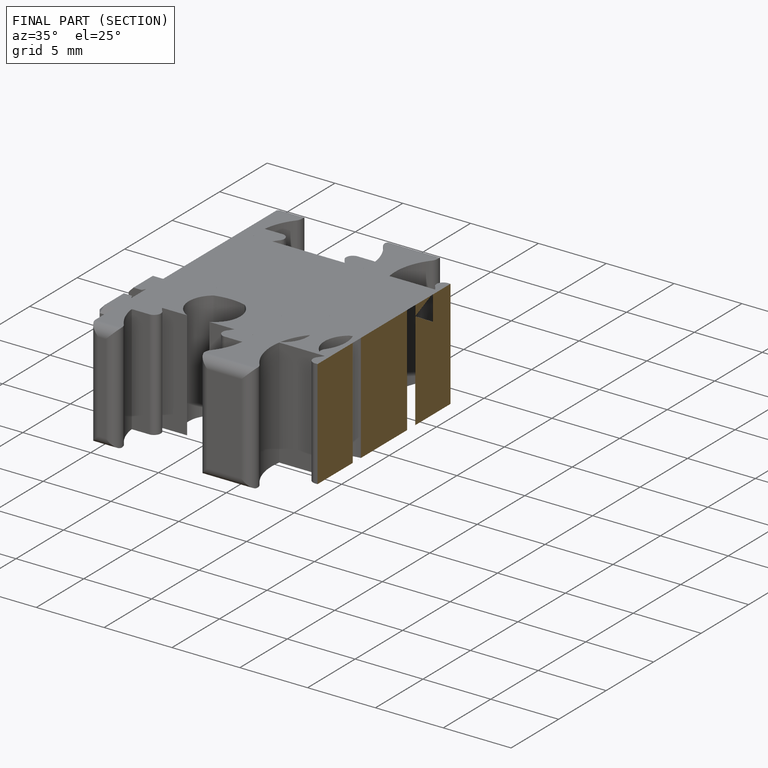
[diagram: finished part — half-section view (interior)]
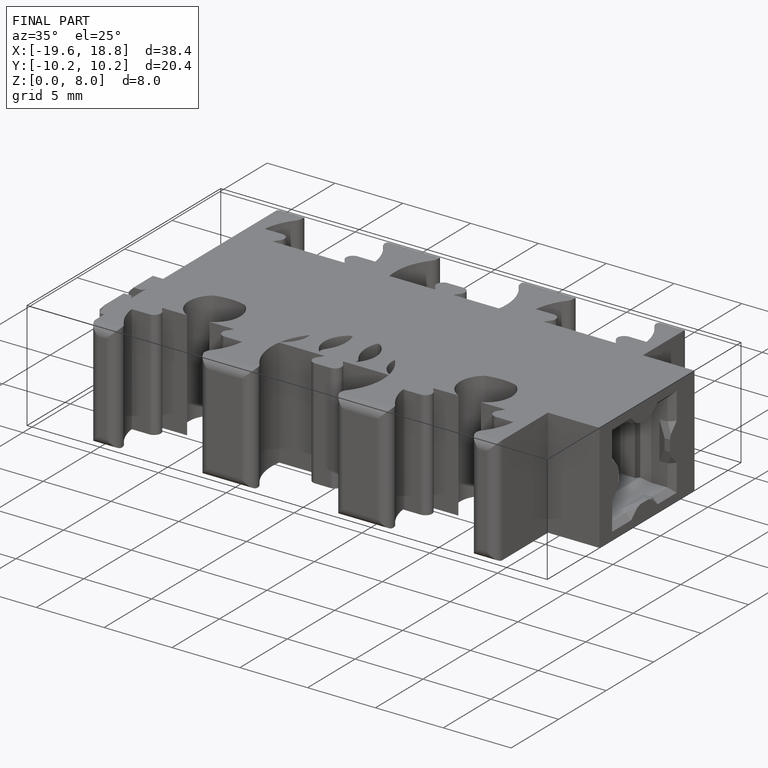
[diagram: finished part — iso view with bounding-box wireframe]
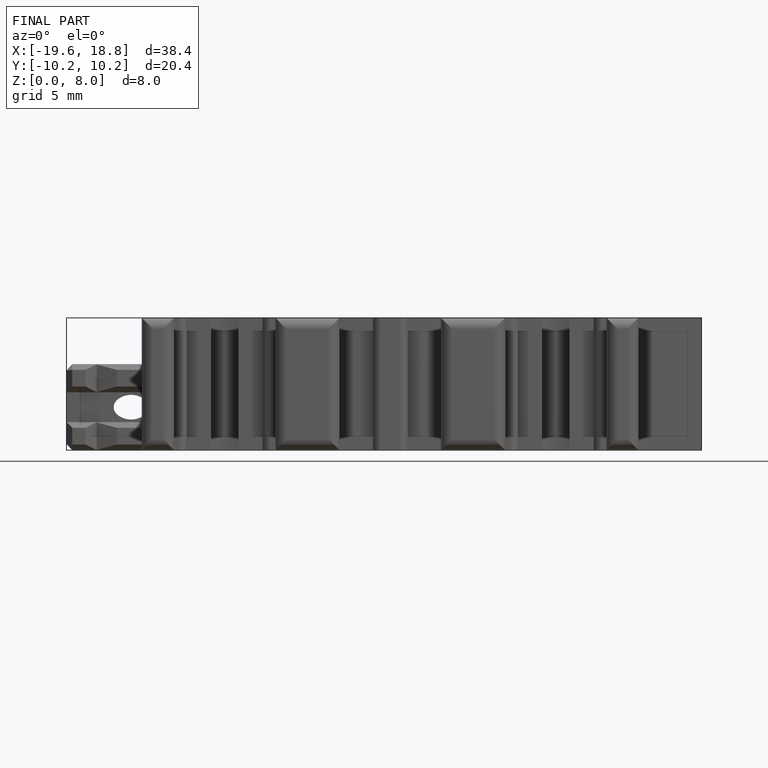
[diagram: finished part — front view with bounding-box wireframe]
